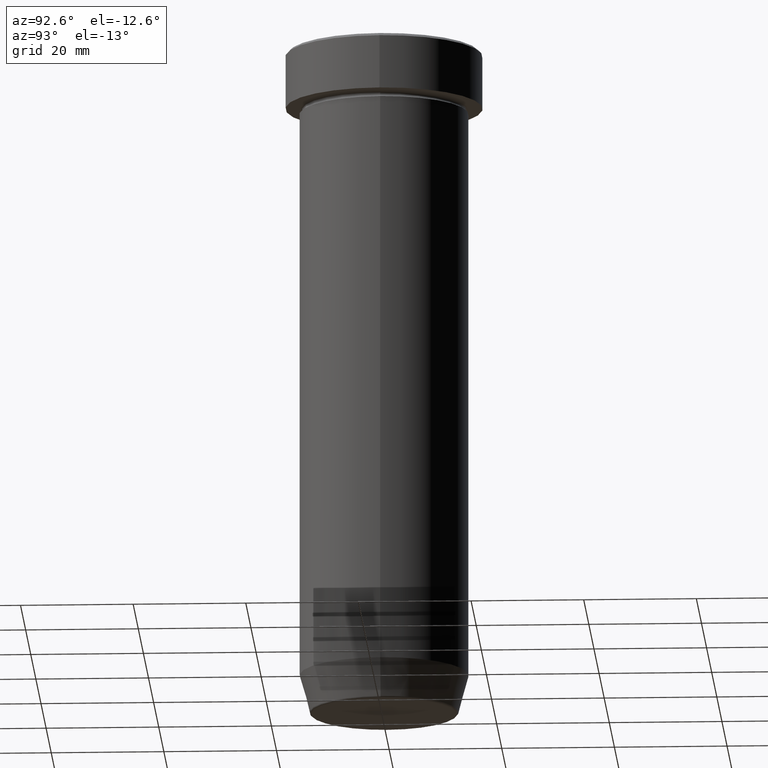
[diagram: clean part render]
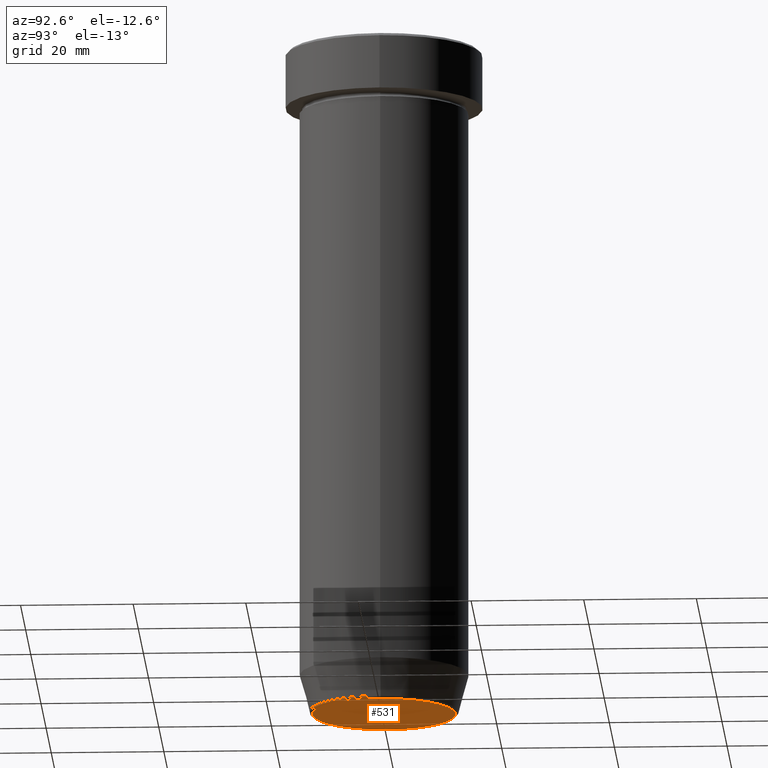
[diagram: same view with one face highlighted and labeled with its STEP entity id]
A machine part, auxiliary view. The second image highlights one B-rep face of the part: STEP entity #531.
In plain terms, the highlighted planar face has unit normal (0, -0, 1).
Its self-contained STEP definition (entity closure, byte-faithful):
#29 = EDGE_LOOP ( 'NONE', ( #447, #314 ) ) ;
#67 = PLANE ( 'NONE',  #289 ) ;
#116 = CIRCLE ( 'NONE', #190, 12.74069215899265473 ) ;
#165 = CARTESIAN_POINT ( 'NONE',  ( 12.74069215899265473, 0.000000000000000000, -120.0000000000000000 ) ) ;
#190 = AXIS2_PLACEMENT_3D ( 'NONE', #371, #419, #514 ) ;
#229 = DIRECTION ( 'NONE',  ( 0.000000000000000000, 0.000000000000000000, -1.000000000000000000 ) ) ;
#235 = CARTESIAN_POINT ( 'NONE',  ( 0.000000000000000000, 0.000000000000000000, -120.0000000000000000 ) ) ;
#246 = EDGE_CURVE ( 'NONE', #459, #530, #116, .T. ) ;
#289 = AXIS2_PLACEMENT_3D ( 'NONE', #423, #580, #438 ) ;
#298 = FACE_OUTER_BOUND ( 'NONE', #29, .T. ) ;
#314 = ORIENTED_EDGE ( 'NONE', *, *, #331, .T. ) ;
#331 = EDGE_CURVE ( 'NONE', #530, #459, #558, .T. ) ;
#371 = CARTESIAN_POINT ( 'NONE',  ( 0.000000000000000000, 0.000000000000000000, -120.0000000000000000 ) ) ;
#419 = DIRECTION ( 'NONE',  ( 0.000000000000000000, 0.000000000000000000, -1.000000000000000000 ) ) ;
#423 = CARTESIAN_POINT ( 'NONE',  ( 0.000000000000000000, 8.572527594031472993E-15, -120.0000000000000000 ) ) ;
#426 = DIRECTION ( 'NONE',  ( 1.000000000000000000, 0.000000000000000000, 0.000000000000000000 ) ) ;
#434 = CARTESIAN_POINT ( 'NONE',  ( -12.74069215899265473, 1.589857736427680246E-15, -120.0000000000000000 ) ) ;
#438 = DIRECTION ( 'NONE',  ( 1.000000000000000000, 0.000000000000000000, 0.000000000000000000 ) ) ;
#447 = ORIENTED_EDGE ( 'NONE', *, *, #246, .T. ) ;
#459 = VERTEX_POINT ( 'NONE', #165 ) ;
#514 = DIRECTION ( 'NONE',  ( 1.000000000000000000, 0.000000000000000000, 0.000000000000000000 ) ) ;
#530 = VERTEX_POINT ( 'NONE', #434 ) ;
#531 = ADVANCED_FACE ( 'NONE', ( #298 ), #67, .F. ) ;
#558 = CIRCLE ( 'NONE', #589, 12.74069215899265473 ) ;
#580 = DIRECTION ( 'NONE',  ( 0.000000000000000000, -0.000000000000000000, 1.000000000000000000 ) ) ;
#589 = AXIS2_PLACEMENT_3D ( 'NONE', #235, #229, #426 ) ;